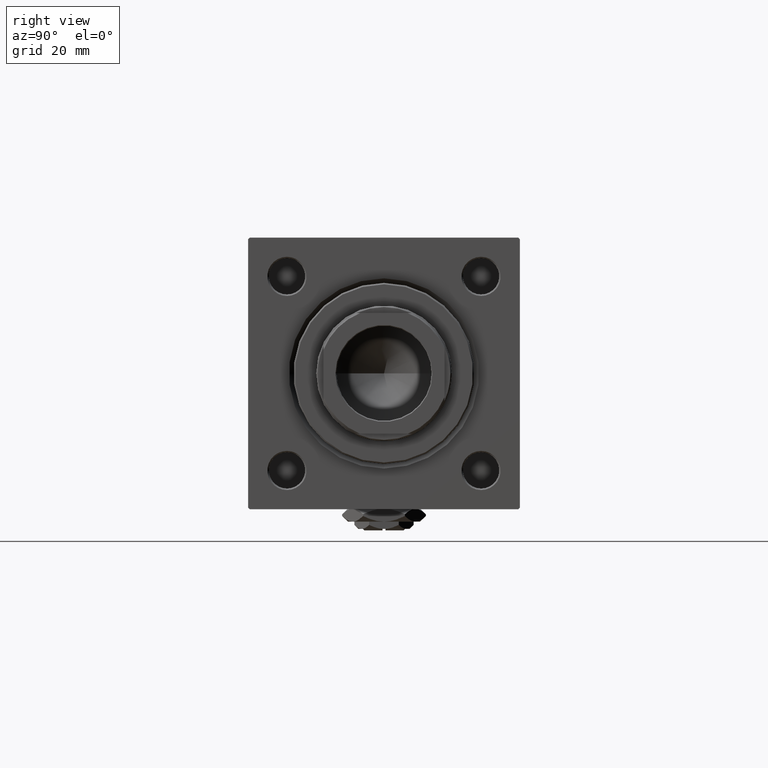
[diagram: clean part render]
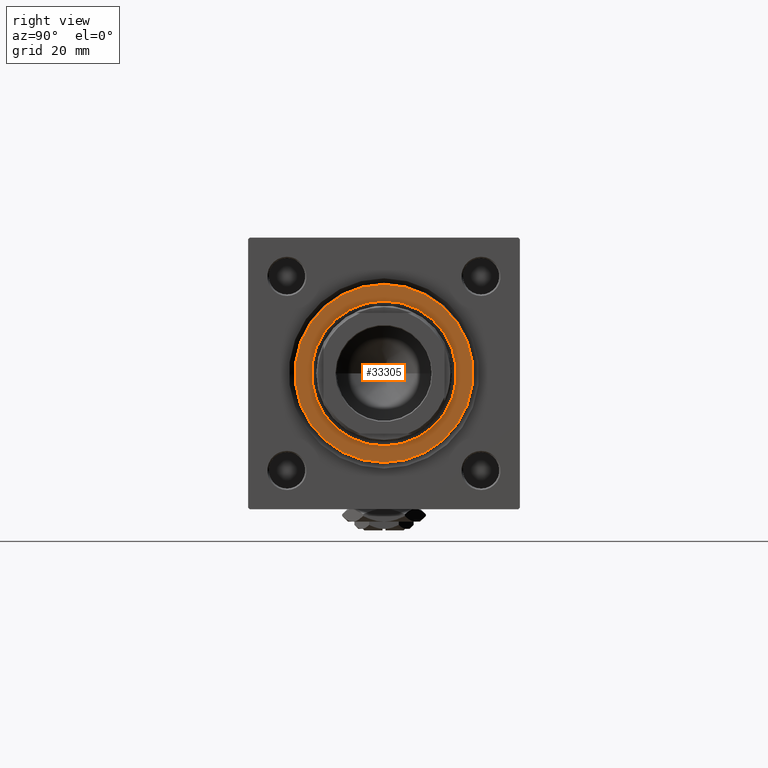
[diagram: same view with one face highlighted and labeled with its STEP entity id]
A machine part, right view. The second image highlights one B-rep face of the part: STEP entity #33305.
In plain terms, the highlighted planar face has unit normal (1, 0, 0).
Its self-contained STEP definition (entity closure, byte-faithful):
#1566 = CARTESIAN_POINT ( 'NONE',  ( -29.50000000000000000, 0.000000000000000000, 41.70000000000000284 ) ) ;
#1785 = DIRECTION ( 'NONE',  ( 0.000000000000000000, 0.000000000000000000, 1.000000000000000000 ) ) ;
#3390 = CIRCLE ( 'NONE', #32712, 24.00000000000000355 ) ;
#3936 = AXIS2_PLACEMENT_3D ( 'NONE', #48433, #16714, #48690 ) ;
#5213 = FACE_OUTER_BOUND ( 'NONE', #8145, .T. ) ;
#5464 = ORIENTED_EDGE ( 'NONE', *, *, #41292, .T. ) ;
#6447 = EDGE_CURVE ( 'NONE', #24044, #47203, #26075, .T. ) ;
#7269 = CIRCLE ( 'NONE', #3936, 29.50000000000000000 ) ;
#8145 = EDGE_LOOP ( 'NONE', ( #43120, #5464 ) ) ;
#8857 = AXIS2_PLACEMENT_3D ( 'NONE', #41395, #1785, #17794 ) ;
#10909 = ORIENTED_EDGE ( 'NONE', *, *, #17757, .F. ) ;
#12205 = EDGE_CURVE ( 'NONE', #32175, #33636, #25811, .T. ) ;
#12776 = ORIENTED_EDGE ( 'NONE', *, *, #6447, .F. ) ;
#13638 = DIRECTION ( 'NONE',  ( 0.000000000000000000, 0.000000000000000000, 1.000000000000000000 ) ) ;
#15755 = CARTESIAN_POINT ( 'NONE',  ( -24.00000000000000355, 2.939152317953648289E-15, 41.70000000000000284 ) ) ;
#16052 = AXIS2_PLACEMENT_3D ( 'NONE', #18069, #13638, #38238 ) ;
#16714 = DIRECTION ( 'NONE',  ( 0.000000000000000000, 0.000000000000000000, 1.000000000000000000 ) ) ;
#17757 = EDGE_CURVE ( 'NONE', #47203, #24044, #3390, .T. ) ;
#17794 = DIRECTION ( 'NONE',  ( 1.000000000000000000, 0.000000000000000000, -0.000000000000000000 ) ) ;
#17871 = EDGE_LOOP ( 'NONE', ( #10909, #12776 ) ) ;
#18069 = CARTESIAN_POINT ( 'NONE',  ( 0.000000000000000000, 0.000000000000000000, 41.70000000000000284 ) ) ;
#21466 = PLANE ( 'NONE',  #8857 ) ;
#22435 = CARTESIAN_POINT ( 'NONE',  ( 24.00000000000000355, 0.000000000000000000, 41.70000000000000284 ) ) ;
#24044 = VERTEX_POINT ( 'NONE', #15755 ) ;
#25811 = CIRCLE ( 'NONE', #36717, 29.50000000000000000 ) ;
#26075 = CIRCLE ( 'NONE', #16052, 24.00000000000000355 ) ;
#27895 = CARTESIAN_POINT ( 'NONE',  ( 0.000000000000000000, 0.000000000000000000, 41.70000000000000284 ) ) ;
#32175 = VERTEX_POINT ( 'NONE', #1566 ) ;
#32712 = AXIS2_PLACEMENT_3D ( 'NONE', #38452, #42407, #35060 ) ;
#33305 = ADVANCED_FACE ( 'NONE', ( #37703, #5213 ), #21466, .T. ) ;
#33636 = VERTEX_POINT ( 'NONE', #46267 ) ;
#35060 = DIRECTION ( 'NONE',  ( 1.000000000000000000, 0.000000000000000000, 0.000000000000000000 ) ) ;
#36717 = AXIS2_PLACEMENT_3D ( 'NONE', #27895, #39679, #44131 ) ;
#37703 = FACE_BOUND ( 'NONE', #17871, .T. ) ;
#38238 = DIRECTION ( 'NONE',  ( 1.000000000000000000, 0.000000000000000000, 0.000000000000000000 ) ) ;
#38452 = CARTESIAN_POINT ( 'NONE',  ( 0.000000000000000000, 0.000000000000000000, 41.70000000000000284 ) ) ;
#39679 = DIRECTION ( 'NONE',  ( 0.000000000000000000, 0.000000000000000000, 1.000000000000000000 ) ) ;
#41292 = EDGE_CURVE ( 'NONE', #33636, #32175, #7269, .T. ) ;
#41395 = CARTESIAN_POINT ( 'NONE',  ( 0.000000000000000000, 0.000000000000000000, 41.70000000000000284 ) ) ;
#42407 = DIRECTION ( 'NONE',  ( 0.000000000000000000, 0.000000000000000000, 1.000000000000000000 ) ) ;
#43120 = ORIENTED_EDGE ( 'NONE', *, *, #12205, .T. ) ;
#44131 = DIRECTION ( 'NONE',  ( 1.000000000000000000, 0.000000000000000000, 0.000000000000000000 ) ) ;
#46267 = CARTESIAN_POINT ( 'NONE',  ( 29.50000000000000000, 3.643324227463375391E-15, 41.70000000000000284 ) ) ;
#47203 = VERTEX_POINT ( 'NONE', #22435 ) ;
#48433 = CARTESIAN_POINT ( 'NONE',  ( 0.000000000000000000, 0.000000000000000000, 41.70000000000000284 ) ) ;
#48690 = DIRECTION ( 'NONE',  ( 1.000000000000000000, 0.000000000000000000, 0.000000000000000000 ) ) ;